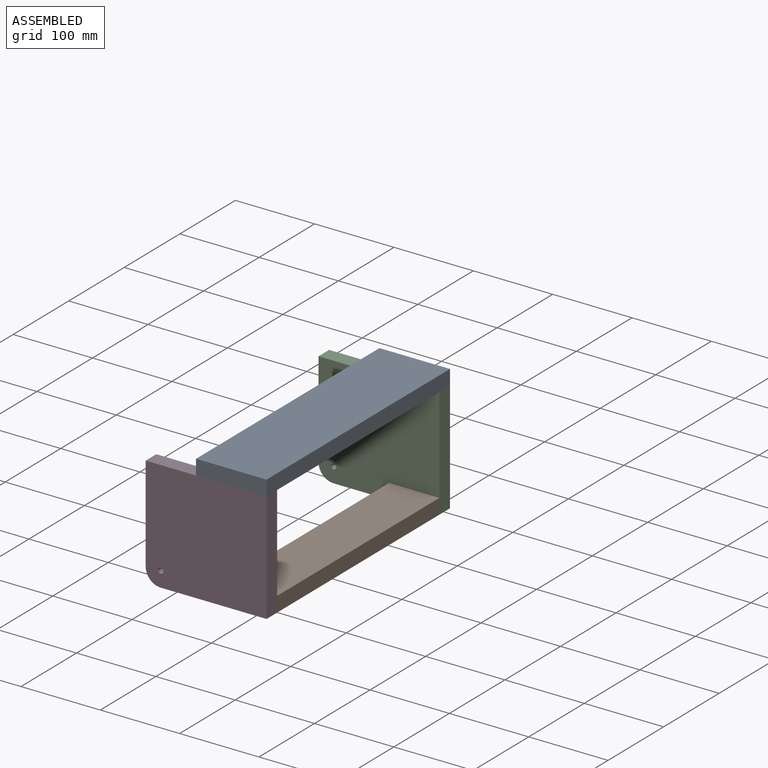
[diagram: assembled view]
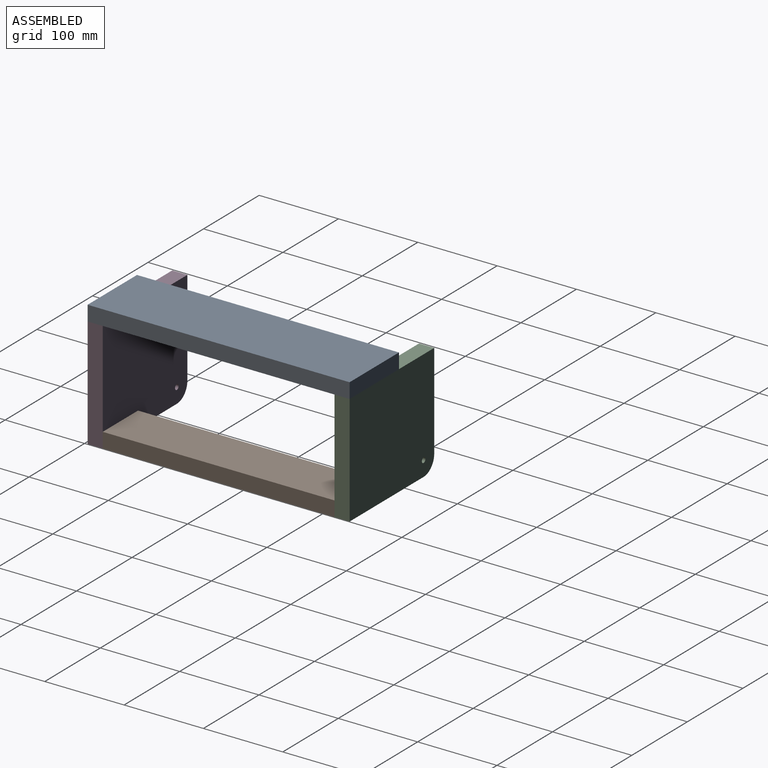
[diagram: assembled view, second angle]
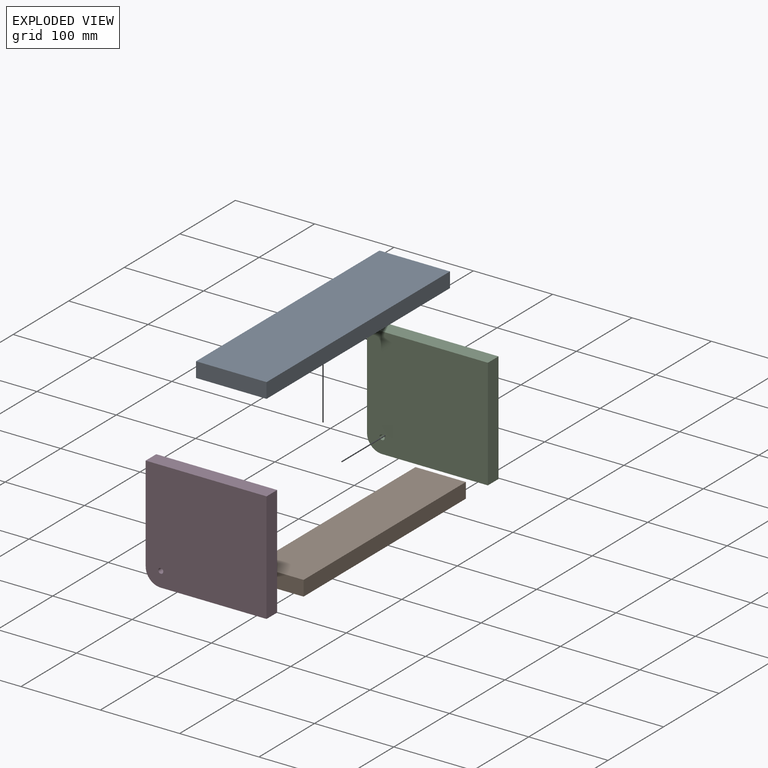
[diagram: exploded view]
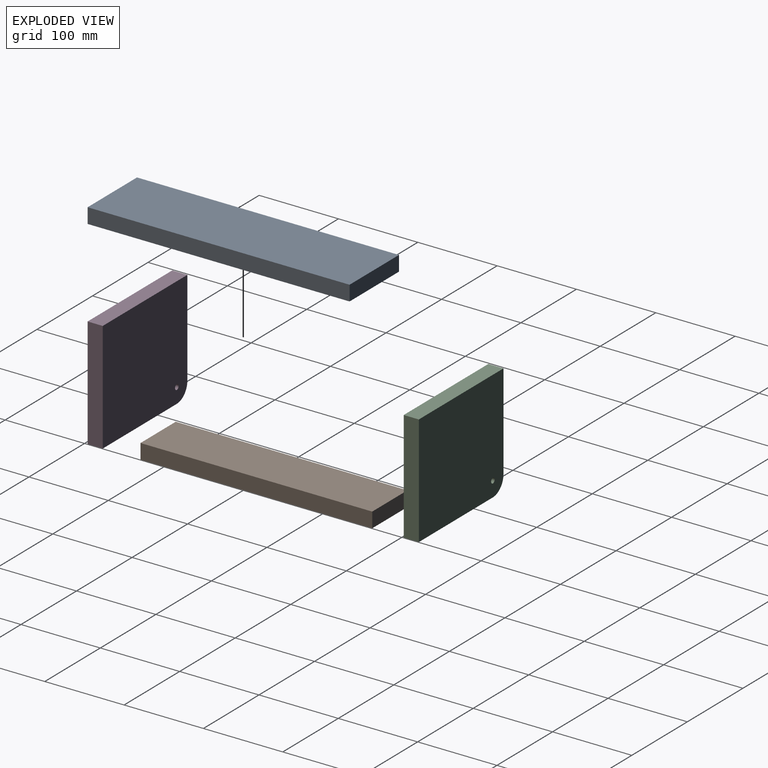
[diagram: exploded view, second angle]
ASSEMBLY  parts=4 mates=3
PART A: 6 faces, bbox 88.9x330.2x19.1 mm
  f0: plane 330.2x88.9mm, normal (0,0,1), area 29354.8mm2, adj f1,f3,f4,f5
  f1: plane 330.2x19.05mm, normal (-1,0,0), area 6290.3mm2, adj f0,f2,f4,f5
  f2: plane 330.2x88.9mm, normal (0,0,-1), area 29354.8mm2, adj f1,f3,f4,f5
  f3: plane 330.2x19.05mm, normal (1,0,0), area 6290.3mm2, adj f0,f2,f4,f5
  f4: plane 88.9x19.05mm, normal (0,-1,0), area 1693.5mm2, adj f0,f1,f2,f3
  f5: plane 88.9x19.05mm, normal (0,1,0), area 1693.5mm2, adj f0,f1,f2,f3
PART B: 6 faces, bbox 63.5x292.1x19.1 mm
  f0: plane 292.1x63.5mm, normal (0,0,1), area 18548.4mm2, adj f1,f3,f4,f5
  f1: plane 292.1x19.05mm, normal (-1,0,0), area 5564.5mm2, adj f0,f2,f4,f5
  f2: plane 292.1x63.5mm, normal (0,0,-1), area 18548.4mm2, adj f1,f3,f4,f5
  f3: plane 292.1x19.05mm, normal (1,0,0), area 5564.5mm2, adj f0,f2,f4,f5
  f4: plane 63.5x19.05mm, normal (0,-1,0), area 1209.7mm2, adj f0,f1,f2,f3
  f5: plane 63.5x19.05mm, normal (0,1,0), area 1209.7mm2, adj f0,f1,f2,f3
PART C: 8 faces, bbox 19.1x152.4x139.7 mm
  f0: plane 152.4x139.7mm, normal (-1,0,0), area 21180.7mm2, adj f1,f3,f4,f5,f6,f7
  f1: plane 133.35x19.05mm, normal (0,0,-1), area 2540.3mm2, adj f0,f2,f5,f6
  f2: plane 152.4x139.7mm, normal (1,0,0), area 21180.7mm2, adj f1,f3,f4,f5,f6,f7
  f3: plane 120.65x19.05mm, normal (0,-1,0), area 2298.4mm2, adj f0,f2,f4,f6
  f4: plane 152.4x19.05mm, normal (0,0,1), area 2903.2mm2, adj f0,f2,f3,f5
  f5: plane 139.7x19.05mm, normal (0,1,0), area 2661.3mm2, adj f0,f1,f2,f4
  f6: cylinder r=19.05mm len=19.05mm, axis (1,0,0), area 570mm2, adj f0,f1,f2,f3
  f7: cylinder r=3.17mm len=19.05mm, axis (1,0,0), area 380mm2, adj f0,f2
PART D: same geometry as C
PLACE A t=(0.37,0.45,0.35)mm fixed
PLACE B rot(axis=(0,0,1),180deg) t=(13.07,0.45,-139.35)mm
PLACE C rot(axis=(0,0,-1),90deg) t=(-31.38,156.02,-79.02)mm
PLACE D rot(axis=(0,0,-1),90deg) t=(-31.38,-155.13,-79.02)mm
MATE fastened C.f2 <-> B.f4  axis (0,-1,0) through (44.82,146.5,-148.87)mm
MATE fastened D.f4 <-> A.f2  axis (0,0,1) through (44.82,-164.65,-9.17)mm
MATE fastened C.f4 <-> A.f2  axis (0,0,1) through (44.82,165.55,-9.17)mm
